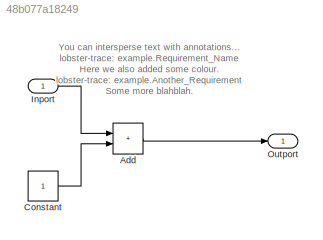
MODEL slx_48b077a18249
KIND model
CONFIG AbsTol = auto
CONFIG EnableMultiTasking = off
CONFIG FixedStep = auto
CONFIG MaxStep = auto
CONFIG MinStep = auto
CONFIG RelTol = 1e-3
CONFIG SampleTimeConstraint = Unconstrained
CONFIG SolverName = VariableStepAuto
CONFIG StartTime = 0.0
CONFIG StopTime = 10.0
BLOCK [Sum] Add
  IconShape = rectangular
  Ports = [2, 1]
BLOCK [Constant] Constant
BLOCK [Inport] Inport
BLOCK [Outport] Outport
ANNOTATION (root): You can intersperse text with annotations ... lobster-trace: example.Requirement_Name Here we also added some colour. lobster-trace: example.Another_Requirement Some more blahblah.
LINE Add:1 -> Outport:1
LINE Constant:1 -> Add:2
LINE Inport:1 -> Add:1
